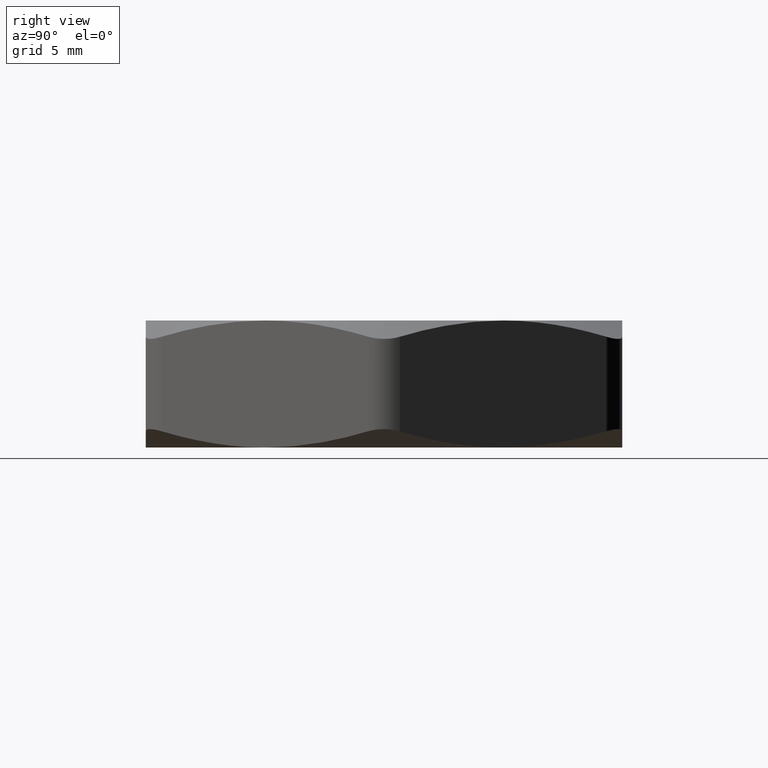
[diagram: clean part render]
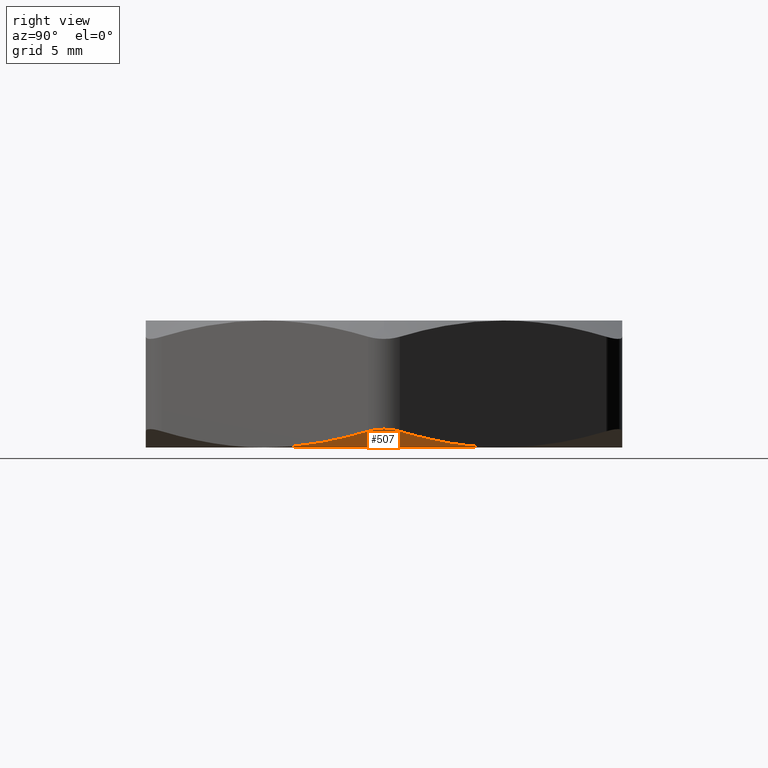
[diagram: same view with one face highlighted and labeled with its STEP entity id]
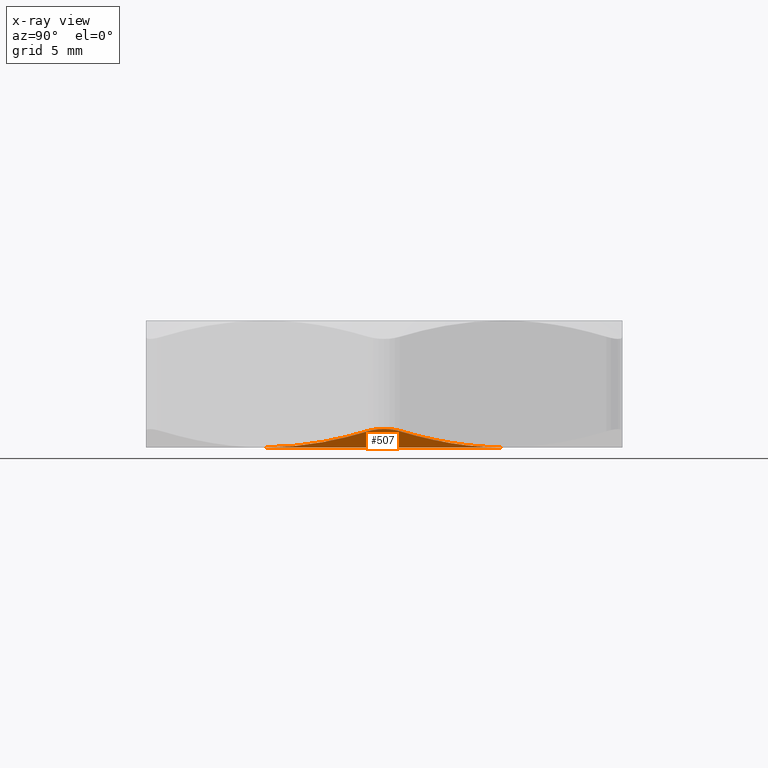
[diagram: x-ray of the same camera — body ghosted, the highlighted face saturated]
A machine part, right view. The second image highlights one B-rep face of the part: STEP entity #507.
The next image is the same camera in x-ray: the body ghosted, the highlighted face saturated — about 0% of this face is hidden behind the body in this view.
In plain terms, the highlighted conical surface has half-angle 60 deg.
Its self-contained STEP definition (entity closure, byte-faithful):
#364 = VERTEX_POINT ( 'NONE', #1474 ) ;
#462 = ORIENTED_EDGE ( 'NONE', *, *, #463, .T. ) ;
#463 = EDGE_CURVE ( 'NONE', #599, #595, #1688, .T. ) ;
#464 = ORIENTED_EDGE ( 'NONE', *, *, #594, .T. ) ;
#465 = ORIENTED_EDGE ( 'NONE', *, *, #505, .T. ) ;
#505 = EDGE_CURVE ( 'NONE', #364, #602, #1772, .T. ) ;
#507 = ADVANCED_FACE ( 'NONE', ( #1767 ), #1766, .T. ) ;
#508 = EDGE_LOOP ( 'NONE', ( #509, #462, #464, #465 ) ) ;
#509 = ORIENTED_EDGE ( 'NONE', *, *, #601, .T. ) ;
#594 = EDGE_CURVE ( 'NONE', #595, #364, #1965, .T. ) ;
#595 = VERTEX_POINT ( 'NONE', #1964 ) ;
#599 = VERTEX_POINT ( 'NONE', #1952 ) ;
#601 = EDGE_CURVE ( 'NONE', #602, #599, #2008, .T. ) ;
#602 = VERTEX_POINT ( 'NONE', #2007 ) ;
#1474 = CARTESIAN_POINT ( 'NONE',  ( 0.3247595264191644500, -0.1875000000000000600, 0.0000000000000000000 ) ) ;
#1676 = CARTESIAN_POINT ( 'NONE',  ( 0.4185789451624685200, -0.02500000000001804300, 0.02559096649278417400 ) ) ;
#1677 = CARTESIAN_POINT ( 'NONE',  ( 0.4207328757074451600, -0.02126928286014925100, 0.02670391018491014000 ) ) ;
#1678 = CARTESIAN_POINT ( 'NONE',  ( 0.4224255658445743000, -0.01720531331098209800, 0.02757112303379814400 ) ) ;
#1679 = CARTESIAN_POINT ( 'NONE',  ( 0.4246893983390692700, -0.008799318937460266100, 0.02872861903395091200 ) ) ;
#1680 = CARTESIAN_POINT ( 'NONE',  ( 0.4252813935054713400, -0.004352839928519236200, 0.02902972366464792000 ) ) ;
#1681 = CARTESIAN_POINT ( 'NONE',  ( 0.4252739203053134100, 0.004437852542509121800, 0.02902591628532014800 ) ) ;
#1682 = CARTESIAN_POINT ( 'NONE',  ( 0.4246841792461048500, 0.008842019655327373500, 0.02872597259901712300 ) ) ;
#1683 = CARTESIAN_POINT ( 'NONE',  ( 0.4223943948315135300, 0.01729736066128882400, 0.02755516287873845500 ) ) ;
#1684 = CARTESIAN_POINT ( 'NONE',  ( 0.4207322339030571400, 0.02127039449795203900, 0.02670357856226486900 ) ) ;
#1685 = CARTESIAN_POINT ( 'NONE',  ( 0.4185789451624789000, 0.02500000000000000500, 0.02559096649278931600 ) ) ;
#1688 = B_SPLINE_CURVE_WITH_KNOTS ( 'NONE', 3,
 ( #1685, #1684, #1683, #1682, #1681, #1680, #1679, #1678, #1677, #1676 ),
 .UNSPECIFIED., .F., .F.,
 ( 4, 2, 2, 2, 4 ),
 ( 1.871623136598395600E-018, 0.0003344051723305217800, 0.0006688103446610416100, 0.001003215516991561500, 0.001337620689322081500 ),
 .UNSPECIFIED. ) ;
#1761 = DIRECTION ( 'NONE',  ( -1.000000000000000000, 0.0000000000000000000, 0.0000000000000000000 ) ) ;
#1762 = DIRECTION ( 'NONE',  ( 0.0000000000000000000, 0.0000000000000000000, 1.000000000000000000 ) ) ;
#1763 = CARTESIAN_POINT ( 'NONE',  ( 0.0000000000000000000, 0.0000000000000000000, 0.0000000000000000000 ) ) ;
#1764 = AXIS2_PLACEMENT_3D ( 'NONE', #1763, #1762, #1761 ) ;
#1766 = CONICAL_SURFACE ( 'NONE', #1764, 0.3749999999999999400, 1.047197551196600100 ) ;
#1767 = FACE_OUTER_BOUND ( 'NONE', #508, .T. ) ;
#1768 = DIRECTION ( 'NONE',  ( 1.000000000000000000, 0.0000000000000000000, 0.0000000000000000000 ) ) ;
#1769 = DIRECTION ( 'NONE',  ( 0.0000000000000000000, 0.0000000000000000000, 1.000000000000000000 ) ) ;
#1770 = CARTESIAN_POINT ( 'NONE',  ( 0.0000000000000000000, 0.0000000000000000000, 0.0000000000000000000 ) ) ;
#1771 = AXIS2_PLACEMENT_3D ( 'NONE', #1770, #1769, #1768 ) ;
#1772 = CIRCLE ( 'NONE', #1771, 0.3749999999999999400 ) ;
#1952 = CARTESIAN_POINT ( 'NONE',  ( 0.4185789451624789000, 0.02500000000000000500, 0.02559096649278931600 ) ) ;
#1957 = CARTESIAN_POINT ( 'NONE',  ( 0.3247595264191644500, -0.1875000000000000600, 0.0000000000000000000 ) ) ;
#1958 = CARTESIAN_POINT ( 'NONE',  ( 0.3407024386049761800, -0.1598860660735657000, -8.463659921777222100E-017 ) ) ;
#1959 = CARTESIAN_POINT ( 'NONE',  ( 0.3564745969185512700, -0.1325678865294335800, 0.002377381589202024400 ) ) ;
#1960 = CARTESIAN_POINT ( 'NONE',  ( 0.3877259324843672100, -0.07843898552505634800, 0.01121127792037132800 ) ) ;
#1961 = CARTESIAN_POINT ( 'NONE',  ( 0.4032065323880965600, -0.05162579996015110400, 0.01764798529039927600 ) ) ;
#1962 = CARTESIAN_POINT ( 'NONE',  ( 0.4185789451624685200, -0.02500000000001804300, 0.02559096649278417400 ) ) ;
#1964 = CARTESIAN_POINT ( 'NONE',  ( 0.4185789451624685200, -0.02500000000001804300, 0.02559096649278417400 ) ) ;
#1965 = B_SPLINE_CURVE_WITH_KNOTS ( 'NONE', 3,
 ( #1962, #1961, #1960, #1959, #1958, #1957 ),
 .UNSPECIFIED., .F., .F.,
 ( 4, 2, 4 ),
 ( 0.0007545642487503559200, 0.003159577114513166100, 0.005564589980275976700 ),
 .UNSPECIFIED. ) ;
#1998 = CARTESIAN_POINT ( 'NONE',  ( 0.4185789451624789000, 0.02500000000000000500, 0.02559096649278931600 ) ) ;
#1999 = CARTESIAN_POINT ( 'NONE',  ( 0.4032407975229044300, 0.05156645100573577900, 0.01766569020931187500 ) ) ;
#2000 = CARTESIAN_POINT ( 'NONE',  ( 0.3877792148433244500, 0.07834669777219500900, 0.01123079092868745300 ) ) ;
#2001 = CARTESIAN_POINT ( 'NONE',  ( 0.3643367906226817100, 0.1189501675749315800, 0.004597593372875003100 ) ) ;
#2002 = CARTESIAN_POINT ( 'NONE',  ( 0.3564809560658953000, 0.1325568721631411600, 0.002889938155333290400 ) ) ;
#2003 = CARTESIAN_POINT ( 'NONE',  ( 0.3406768993189374100, 0.1599303014145737300, 0.0005901327189830636700 ) ) ;
#2004 = CARTESIAN_POINT ( 'NONE',  ( 0.3326984364596729500, 0.1737494044531212000, -1.114982149269587900E-016 ) ) ;
#2005 = CARTESIAN_POINT ( 'NONE',  ( 0.3247595264191644500, 0.1874999999999999200, 0.0000000000000000000 ) ) ;
#2007 = CARTESIAN_POINT ( 'NONE',  ( 0.3247595264191644500, 0.1874999999999999200, 0.0000000000000000000 ) ) ;
#2008 = B_SPLINE_CURVE_WITH_KNOTS ( 'NONE', 3,
 ( #2005, #2004, #2003, #2002, #2001, #2000, #1999, #1998 ),
 .UNSPECIFIED., .F., .F.,
 ( 4, 2, 2, 4 ),
 ( 0.005564589980275968000, 0.006762186791010953700, 0.007959783601745939300, 0.01035497722321591600 ),
 .UNSPECIFIED. ) ;